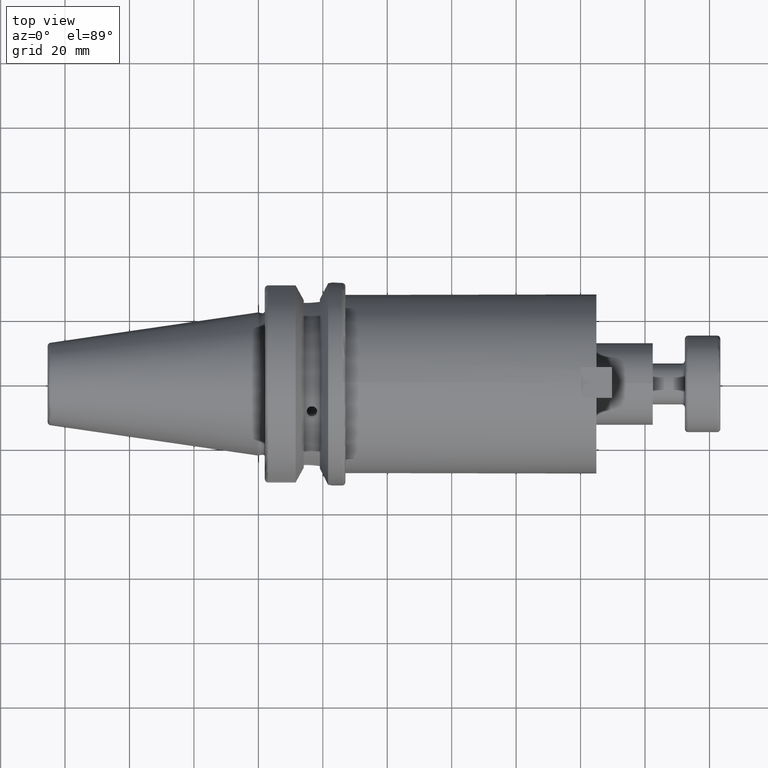
[diagram: clean part render]
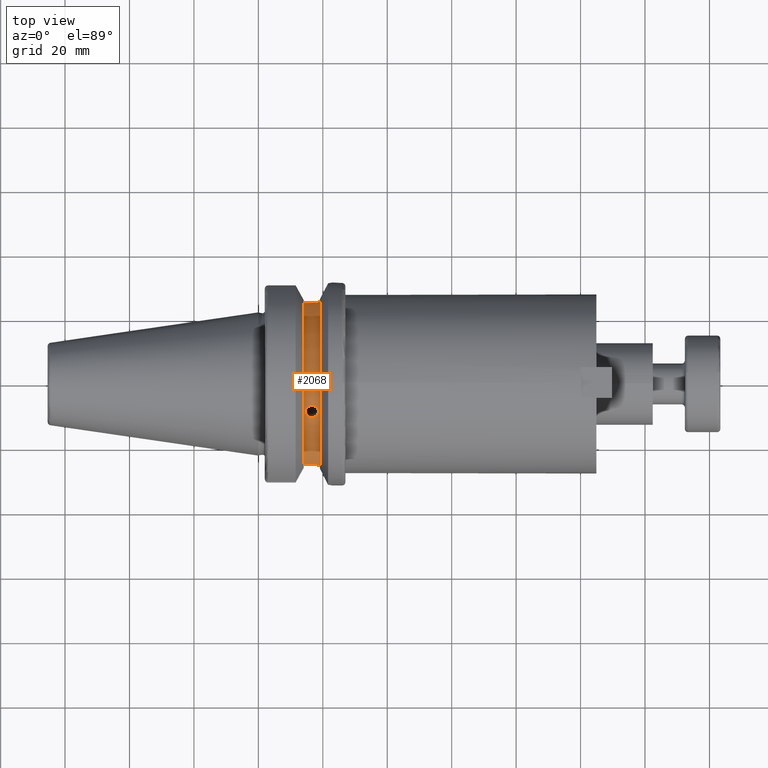
[diagram: same view with one face highlighted and labeled with its STEP entity id]
A machine part, top view. The second image highlights one B-rep face of the part: STEP entity #2068.
In plain terms, the highlighted cylindrical surface (partial cylindrical patch) has radius 26.3 mm, axis along (1, 0, 0).
Its self-contained STEP definition (entity closure, byte-faithful):
#97=B_SPLINE_CURVE_WITH_KNOTS('',3,(#3362,#3363,#3364,#3365,#3366,#3367,
#3368,#3369,#3370,#3371,#3372,#3373,#3374,#3375,#3376,#3377,#3378,#3379,
#3380,#3381,#3382,#3383,#3384,#3385,#3386,#3387),.UNSPECIFIED.,.F.,.F.,
(4,2,2,2,2,2,2,2,2,2,2,2,4),(0.,0.0753686022562803,0.150737204512561,0.226105721315764,
0.301474238118967,0.376842754922171,0.452211271725374,0.527579873981654,
0.602948476237934,0.678317078494215,0.753685680750495,0.829054197553698,
0.904422714356902),.UNSPECIFIED.);
#98=B_SPLINE_CURVE_WITH_KNOTS('',3,(#3388,#3389,#3390,#3391,#3392,#3393,
#3394,#3395,#3396,#3397),.UNSPECIFIED.,.F.,.F.,(4,2,2,2,4),(0.904422714356902,
0.979791231160105,1.05515974796331,1.13052835021959,1.20589695247587),
 .UNSPECIFIED.);
#106=B_SPLINE_CURVE_WITH_KNOTS('',3,(#3540,#3541,#3542,#3543,#3544,#3545),
 .UNSPECIFIED.,.F.,.F.,(4,2,4),(0.,0.305409847287967,0.418608358539112),
 .UNSPECIFIED.);
#113=B_SPLINE_CURVE_WITH_KNOTS('',3,(#3682,#3683,#3684,#3685,#3686,#3687),
 .UNSPECIFIED.,.F.,.F.,(4,2,4),(-0.418608358539113,-0.305409847287967,0.),
 .UNSPECIFIED.);
#131=FACE_BOUND('',#515,.T.);
#170=CYLINDRICAL_SURFACE('',#2374,26.3);
#242=CIRCLE('',#2373,26.3);
#243=CIRCLE('',#2375,26.3);
#376=FACE_OUTER_BOUND('',#514,.T.);
#514=EDGE_LOOP('',(#1694,#1695,#1696,#1697,#1698,#1699));
#515=EDGE_LOOP('',(#1700,#1701));
#626=LINE('',#3553,#760);
#645=LINE('',#3698,#779);
#760=VECTOR('',#2725,10.);
#779=VECTOR('',#2792,10.);
#895=VERTEX_POINT('',#3359);
#896=VERTEX_POINT('',#3361);
#924=VERTEX_POINT('',#3537);
#925=VERTEX_POINT('',#3539);
#928=VERTEX_POINT('',#3552);
#954=VERTEX_POINT('',#3679);
#955=VERTEX_POINT('',#3681);
#957=VERTEX_POINT('',#3697);
#1114=EDGE_CURVE('',#896,#895,#97,.T.);
#1115=EDGE_CURVE('',#895,#896,#98,.T.);
#1154=EDGE_CURVE('',#925,#924,#106,.T.);
#1158=EDGE_CURVE('',#928,#925,#626,.T.);
#1197=EDGE_CURVE('',#955,#954,#113,.T.);
#1200=EDGE_CURVE('',#954,#957,#645,.T.);
#1228=EDGE_CURVE('',#957,#928,#242,.T.);
#1229=EDGE_CURVE('',#955,#924,#243,.T.);
#1694=ORIENTED_EDGE('',*,*,#1154,.T.);
#1695=ORIENTED_EDGE('',*,*,#1229,.F.);
#1696=ORIENTED_EDGE('',*,*,#1197,.T.);
#1697=ORIENTED_EDGE('',*,*,#1200,.T.);
#1698=ORIENTED_EDGE('',*,*,#1228,.T.);
#1699=ORIENTED_EDGE('',*,*,#1158,.T.);
#1700=ORIENTED_EDGE('',*,*,#1114,.T.);
#1701=ORIENTED_EDGE('',*,*,#1115,.T.);
#2068=ADVANCED_FACE('',(#376,#131),#170,.T.);
#2373=AXIS2_PLACEMENT_3D('',#3764,#2859,#2860);
#2374=AXIS2_PLACEMENT_3D('',#3765,#2861,#2862);
#2375=AXIS2_PLACEMENT_3D('',#3766,#2863,#2864);
#2725=DIRECTION('',(1.,0.,0.));
#2792=DIRECTION('',(-1.,0.,0.));
#2859=DIRECTION('center_axis',(1.,0.,0.));
#2860=DIRECTION('ref_axis',(0.,0.,-1.));
#2861=DIRECTION('center_axis',(1.,0.,0.));
#2862=DIRECTION('ref_axis',(0.,1.,0.));
#2863=DIRECTION('center_axis',(1.,0.,0.));
#2864=DIRECTION('ref_axis',(0.,0.,-1.));
#3359=CARTESIAN_POINT('',(18.6,-8.99512976946508,24.7139159266694));
#3361=CARTESIAN_POINT('',(16.6,-10.8484681632397,23.9583125138473));
#3362=CARTESIAN_POINT('Ctrl Pts',(16.6,-10.8484681632397,23.9583125138473));
#3363=CARTESIAN_POINT('Ctrl Pts',(16.3487713258124,-10.8484681632397,23.9583125138473));
#3364=CARTESIAN_POINT('Ctrl Pts',(16.0808634635055,-10.8026312059314,23.9792332809551));
#3365=CARTESIAN_POINT('Ctrl Pts',(15.5881335734806,-10.6157220316234,24.0625625284371));
#3366=CARTESIAN_POINT('Ctrl Pts',(15.3633032901695,-10.4745836275816,24.1247736039656));
#3367=CARTESIAN_POINT('Ctrl Pts',(15.0082697863532,-10.1475002295709,24.2641678743161));
#3368=CARTESIAN_POINT('Ctrl Pts',(14.8543654731044,-9.93970858415699,24.3506250532793));
#3369=CARTESIAN_POINT('Ctrl Pts',(14.6502278994682,-9.4816008819375,24.5326311662299));
#3370=CARTESIAN_POINT('Ctrl Pts',(14.6,-9.23120723306358,24.6279907569385));
#3371=CARTESIAN_POINT('Ctrl Pts',(14.6,-8.75905230586659,24.7998410964003));
#3372=CARTESIAN_POINT('Ctrl Pts',(14.6502278994682,-8.50594367918219,24.8877413468803));
#3373=CARTESIAN_POINT('Ctrl Pts',(14.8543654731044,-8.03802154525512,25.0427825303295));
#3374=CARTESIAN_POINT('Ctrl Pts',(15.0082697863532,-7.82327030655317,25.1101183838853));
#3375=CARTESIAN_POINT('Ctrl Pts',(15.3633032901695,-7.48310897722805,25.2135813332562));
#3376=CARTESIAN_POINT('Ctrl Pts',(15.5881335734806,-7.33500217856616,25.2566469019161));
#3377=CARTESIAN_POINT('Ctrl Pts',(16.0808634635055,-7.13825843641358,25.3129558963152));
#3378=CARTESIAN_POINT('Ctrl Pts',(16.3487713258124,-7.08969768009609,25.32639308715));
#3379=CARTESIAN_POINT('Ctrl Pts',(16.8512286741876,-7.08969768009609,25.32639308715));
#3380=CARTESIAN_POINT('Ctrl Pts',(17.1191365364945,-7.13825843641358,25.3129558963152));
#3381=CARTESIAN_POINT('Ctrl Pts',(17.6118664265194,-7.33500217856616,25.2566469019161));
#3382=CARTESIAN_POINT('Ctrl Pts',(17.8366967098305,-7.48310897722804,25.2135813332562));
#3383=CARTESIAN_POINT('Ctrl Pts',(18.1917302136467,-7.82327030655317,25.1101183838853));
#3384=CARTESIAN_POINT('Ctrl Pts',(18.3456345268956,-8.03802154525511,25.0427825303295));
#3385=CARTESIAN_POINT('Ctrl Pts',(18.5497721005318,-8.50594367918219,24.8877413468803));
#3386=CARTESIAN_POINT('Ctrl Pts',(18.6,-8.75905230586659,24.7998410964003));
#3387=CARTESIAN_POINT('Ctrl Pts',(18.6,-8.99512976946508,24.7139159266694));
#3388=CARTESIAN_POINT('Ctrl Pts',(18.6,-8.99512976946509,24.7139159266694));
#3389=CARTESIAN_POINT('Ctrl Pts',(18.6,-9.23120723306358,24.6279907569385));
#3390=CARTESIAN_POINT('Ctrl Pts',(18.5497721005318,-9.48160088193749,24.5326311662299));
#3391=CARTESIAN_POINT('Ctrl Pts',(18.3456345268956,-9.93970858415699,24.3506250532793));
#3392=CARTESIAN_POINT('Ctrl Pts',(18.1917302136467,-10.1475002295709,24.2641678743161));
#3393=CARTESIAN_POINT('Ctrl Pts',(17.8366967098305,-10.4745836275816,24.1247736039656));
#3394=CARTESIAN_POINT('Ctrl Pts',(17.6118664265194,-10.6157220316234,24.0625625284371));
#3395=CARTESIAN_POINT('Ctrl Pts',(17.1191365364945,-10.8026312059314,23.9792332809551));
#3396=CARTESIAN_POINT('Ctrl Pts',(16.8512286741876,-10.8484681632397,23.9583125138473));
#3397=CARTESIAN_POINT('Ctrl Pts',(16.6,-10.8484681632397,23.9583125138473));
#3537=CARTESIAN_POINT('',(19.1,-25.3793222919762,6.89782574439221));
#3539=CARTESIAN_POINT('',(14.95,-25.0377215417058,8.05));
#3540=CARTESIAN_POINT('Ctrl Pts',(14.95,-25.0377215417058,8.05));
#3541=CARTESIAN_POINT('Ctrl Pts',(15.9680328242932,-25.0377215417058,8.05));
#3542=CARTESIAN_POINT('Ctrl Pts',(17.0490724969254,-25.1063150193149,7.84520188991776));
#3543=CARTESIAN_POINT('Ctrl Pts',(18.4068260684762,-25.2726009715968,7.28086186600679));
#3544=CARTESIAN_POINT('Ctrl Pts',(18.7623374744972,-25.3241080721198,7.10097664045187));
#3545=CARTESIAN_POINT('Ctrl Pts',(19.1,-25.3793222919762,6.89782574439221));
#3552=CARTESIAN_POINT('',(14.1,-25.0377215417058,8.05));
#3553=CARTESIAN_POINT('',(16.6,-25.0377215417058,8.05));
#3679=CARTESIAN_POINT('',(14.95,25.0377215417058,8.05));
#3681=CARTESIAN_POINT('',(19.1,25.3793222919762,6.89782574439221));
#3682=CARTESIAN_POINT('Ctrl Pts',(19.1,25.3793222919762,6.89782574439221));
#3683=CARTESIAN_POINT('Ctrl Pts',(18.7623374744972,25.3241080721198,7.10097664045187));
#3684=CARTESIAN_POINT('Ctrl Pts',(18.4068260684762,25.2726009715968,7.28086186600679));
#3685=CARTESIAN_POINT('Ctrl Pts',(17.0490724969254,25.1063150193149,7.84520188991776));
#3686=CARTESIAN_POINT('Ctrl Pts',(15.9680328242932,25.0377215417058,8.05));
#3687=CARTESIAN_POINT('Ctrl Pts',(14.95,25.0377215417058,8.05));
#3697=CARTESIAN_POINT('',(14.1,25.0377215417058,8.05));
#3698=CARTESIAN_POINT('',(16.6,25.0377215417058,8.05));
#3764=CARTESIAN_POINT('Origin',(14.1,0.,0.));
#3765=CARTESIAN_POINT('Origin',(16.6,0.,0.));
#3766=CARTESIAN_POINT('Origin',(19.1,0.,0.));